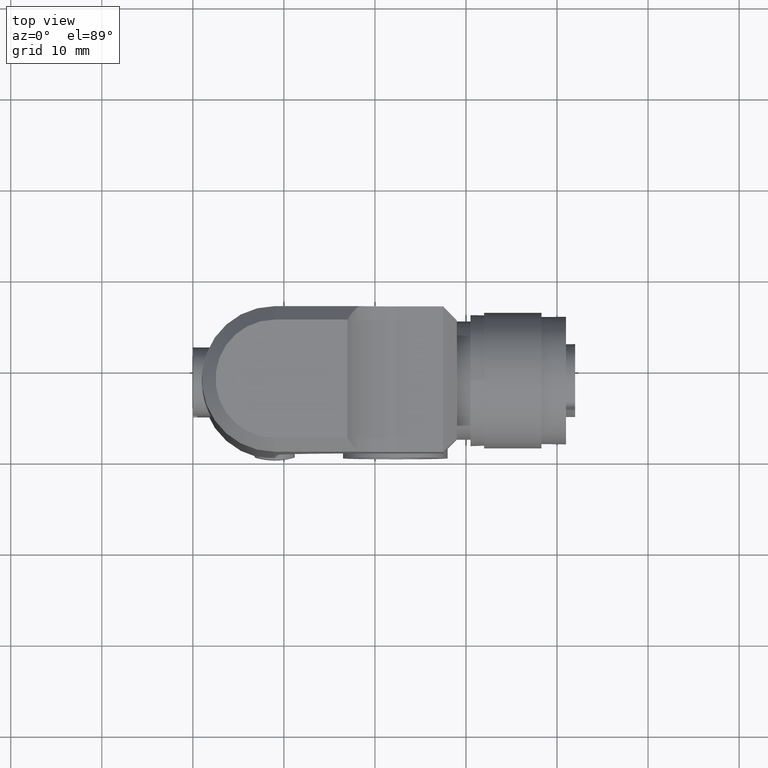
[diagram: clean part render]
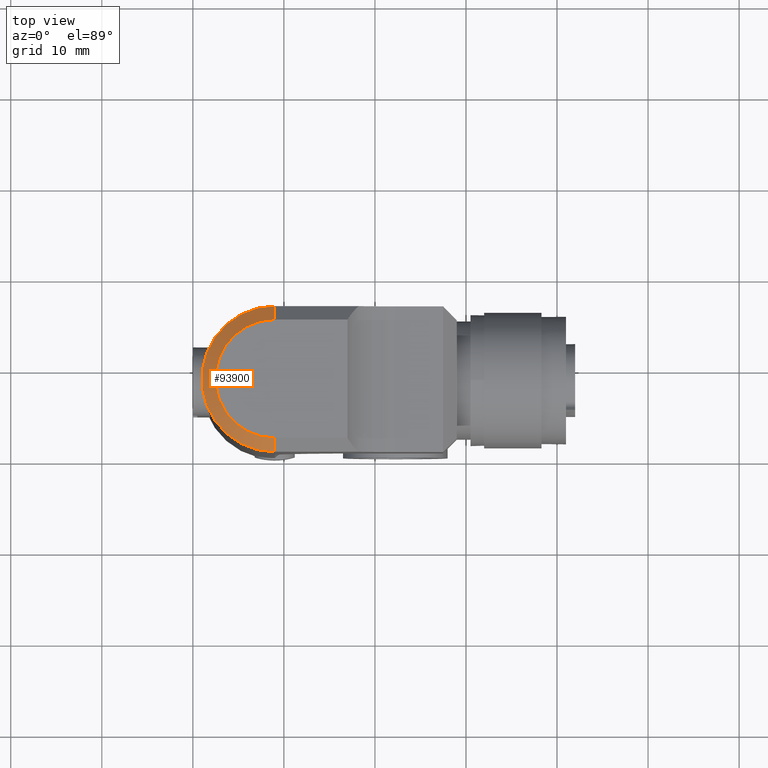
[diagram: same view with one face highlighted and labeled with its STEP entity id]
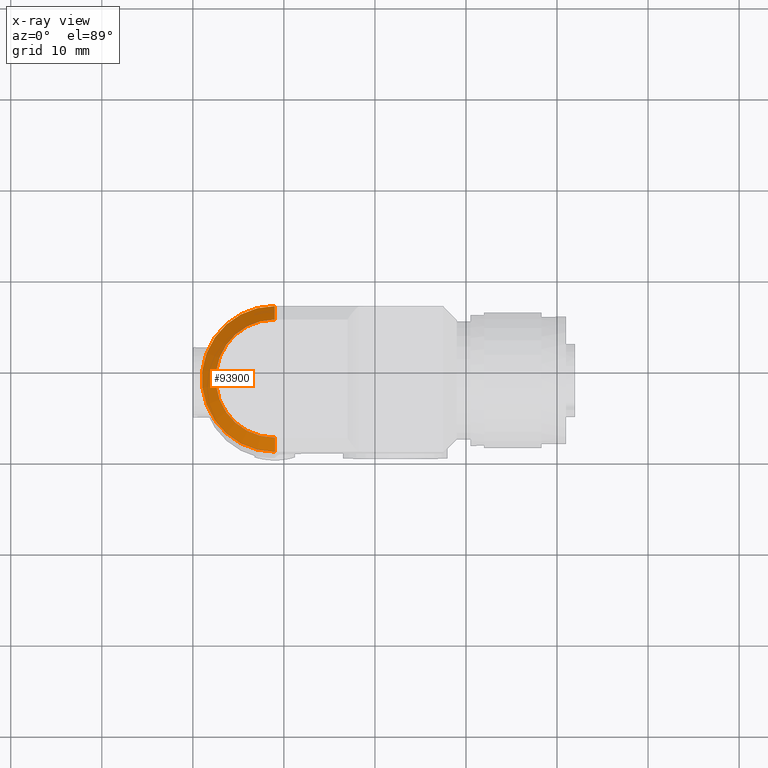
[diagram: x-ray of the same camera — body ghosted, the highlighted face saturated]
A machine part, top view. The second image highlights one B-rep face of the part: STEP entity #93900.
The next image is the same camera in x-ray: the body ghosted, the highlighted face saturated — about 0% of this face is hidden behind the body in this view.
In plain terms, the highlighted conical surface has half-angle 45 deg.
Its self-contained STEP definition (entity closure, byte-faithful):
#4900=CARTESIAN_POINT('',(8.,5.28330100839187E-15,48.5));
#4910=VERTEX_POINT('',#4900);
#9440=CARTESIAN_POINT('',(-7.99999999999999,3.55271367880052E-15,48.5));
#9450=VERTEX_POINT('',#9440);
#9480=CARTESIAN_POINT('',(0.,3.5527136788005E-15,48.5));
#9490=DIRECTION('',(0.,0.,-1.));
#9500=DIRECTION('',(-1.,0.,0.));
#9510=AXIS2_PLACEMENT_3D('',#9480,#9490,#9500);
#9520=CIRCLE('',#9510,8.);
#9530=EDGE_CURVE('',#4910,#9450,#9520,.T.);
#15720=CARTESIAN_POINT('',(6.5,4.34873409824628E-15,50.));
#15730=VERTEX_POINT('',#15720);
#15760=CARTESIAN_POINT('',(0.,3.5527136788005E-15,50.));
#15770=DIRECTION('',(0.,0.,-1.));
#15780=DIRECTION('',(-1.,0.,0.));
#15790=AXIS2_PLACEMENT_3D('',#15760,#15770,#15780);
#15800=CIRCLE('',#15790,6.5);
#15810=CARTESIAN_POINT('',(-6.5,1.96067283990894E-15,50.));
#15820=VERTEX_POINT('',#15810);
#15830=EDGE_CURVE('',#15730,#15820,#15800,.T.);
#78490=CARTESIAN_POINT('',(-6.5,1.96067283990894E-15,50.));
#78500=DIRECTION('',(-0.707106781186541,-1.73191211247097E-16,
-0.707106781186554));
#78510=VECTOR('',#78500,1.);
#78520=LINE('',#78490,#78510);
#78530=EDGE_CURVE('',#15820,#9450,#78520,.T.);
#78720=CARTESIAN_POINT('',(8.,4.53243111811838E-15,48.5));
#78730=DIRECTION('',(0.707106781186541,8.65956056235486E-17,
-0.707106781186554));
#78740=VECTOR('',#78730,11.3137084989849);
#78750=LINE('',#78720,#78740);
#78760=EDGE_CURVE('',#15730,#4910,#78750,.T.);
#93790=CARTESIAN_POINT('',(0.,3.5527136788005E-15,48.5));
#93800=DIRECTION('',(0.,0.,-1.));
#93810=DIRECTION('',(-1.,0.,0.));
#93820=AXIS2_PLACEMENT_3D('',#93790,#93800,#93810);
#93830=CONICAL_SURFACE('',#93820,8.,0.78539816339744);
#93840=ORIENTED_EDGE('',*,*,#78530,.T.);
#93850=ORIENTED_EDGE('',*,*,#15830,.T.);
#93860=ORIENTED_EDGE('',*,*,#78760,.F.);
#93870=ORIENTED_EDGE('',*,*,#9530,.F.);
#93880=EDGE_LOOP('',(#93870,#93860,#93850,#93840));
#93890=FACE_OUTER_BOUND('',#93880,.T.);
#93900=ADVANCED_FACE('',(#93890),#93830,.T.);